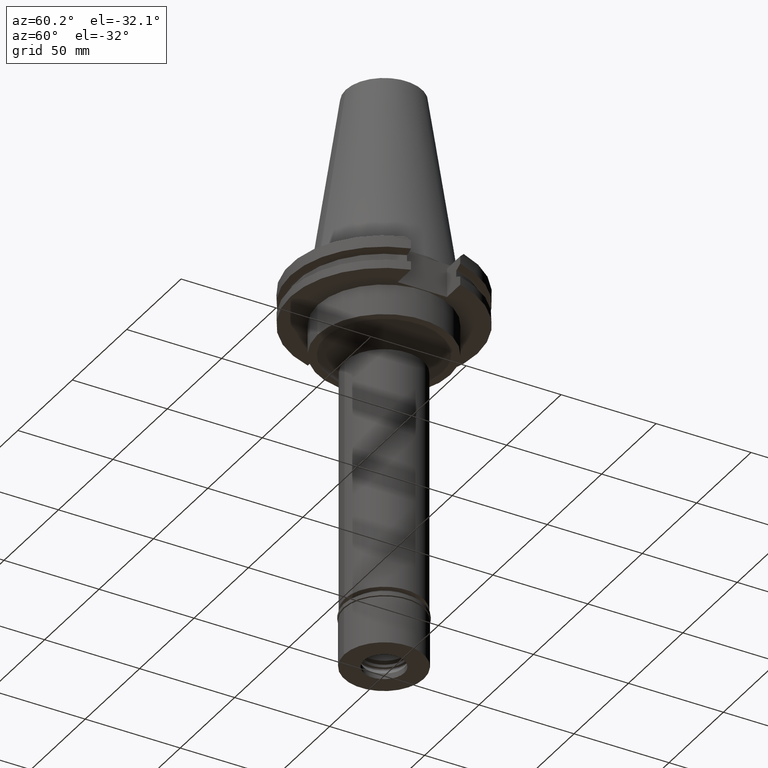
[diagram: clean part render]
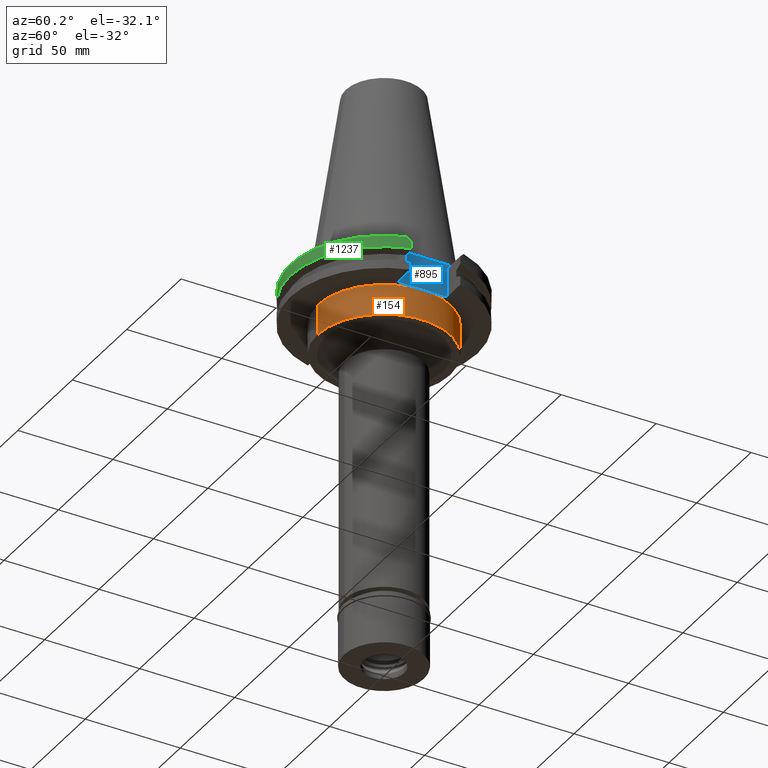
[diagram: same view with three faces highlighted in distinct colors, each labeled with its STEP entity id]
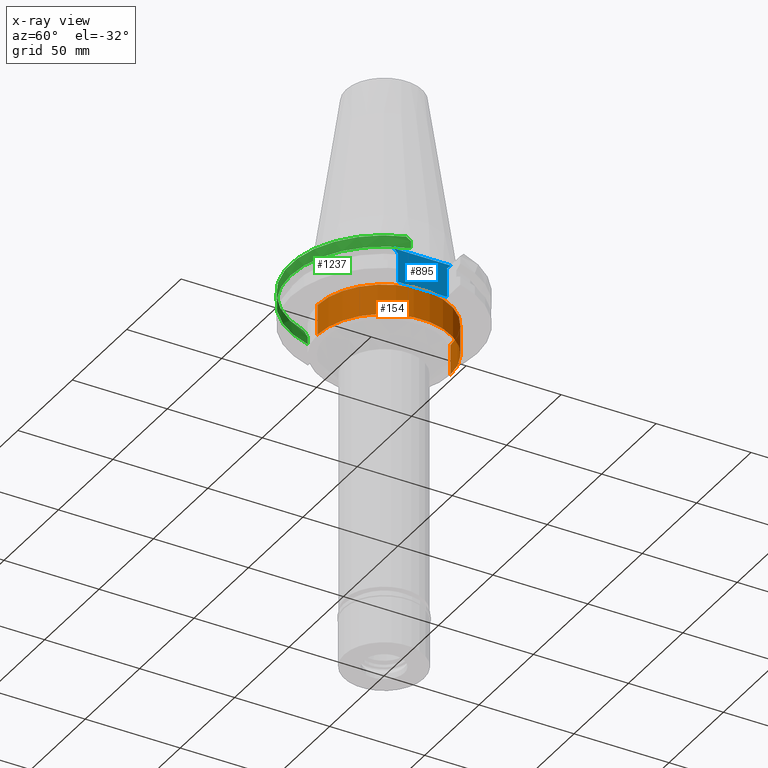
[diagram: x-ray of the same camera — body ghosted, the three highlighted faces saturated]
A machine part, auxiliary view with three faces highlighted in distinct colors.
The next image is the same camera in x-ray (body ghosted, the three faces saturated) — at least one of them is partly hidden behind the body in this view.
Their STEP definitions:

[orange] entity #154 — the highlighted cylindrical surface (partial cylindrical patch) has radius 34.925 mm, axis along (0, 0, -1).
#79 = DIRECTION ( 'NONE',  ( 0.0000000000000000000, -1.000000000000000000, 0.0000000000000000000 ) ) ;
#154 = ADVANCED_FACE ( 'NONE', ( #2116 ), #2400, .T. ) ;
#155 = CIRCLE ( 'NONE', #1707, 34.92499999999999716 ) ;
#169 = VERTEX_POINT ( 'NONE', #1880 ) ;
#348 = ORIENTED_EDGE ( 'NONE', *, *, #3296, .T. ) ;
#505 = CARTESIAN_POINT ( 'NONE',  ( 0.0000000000000000000, 2.648788561875999721E-14, -35.00000000000000000 ) ) ;
#511 = CARTESIAN_POINT ( 'NONE',  ( 0.0000000000000000000, -34.92499999999999716, -19.05000000000000071 ) ) ;
#675 = CARTESIAN_POINT ( 'NONE',  ( 0.0000000000000000000, 2.648788561875999721E-14, -19.05000000000000071 ) ) ;
#796 = DIRECTION ( 'NONE',  ( 0.0000000000000000000, 0.0000000000000000000, -1.000000000000000000 ) ) ;
#921 = EDGE_CURVE ( 'NONE', #1113, #169, #1217, .T. ) ;
#1059 = DIRECTION ( 'NONE',  ( 0.0000000000000000000, 0.0000000000000000000, 1.000000000000000000 ) ) ;
#1069 = VECTOR ( 'NONE', #2089, 1000.000000000000000 ) ;
#1113 = VERTEX_POINT ( 'NONE', #1749 ) ;
#1190 = DIRECTION ( 'NONE',  ( 0.0000000000000000000, 1.000000000000000000, 0.0000000000000000000 ) ) ;
#1217 = LINE ( 'NONE', #1702, #1476 ) ;
#1304 = CARTESIAN_POINT ( 'NONE',  ( 0.0000000000000000000, -34.92499999999999716, -19.05000000000000071 ) ) ;
#1309 = LINE ( 'NONE', #511, #1069 ) ;
#1476 = VECTOR ( 'NONE', #2249, 1000.000000000000000 ) ;
#1521 = ORIENTED_EDGE ( 'NONE', *, *, #921, .F. ) ;
#1523 = DIRECTION ( 'NONE',  ( 0.0000000000000000000, -1.000000000000000000, 0.0000000000000000000 ) ) ;
#1702 = CARTESIAN_POINT ( 'NONE',  ( 0.0000000000000000000, 34.92499999999999716, -19.05000000000000071 ) ) ;
#1707 = AXIS2_PLACEMENT_3D ( 'NONE', #505, #1059, #1523 ) ;
#1749 = CARTESIAN_POINT ( 'NONE',  ( 0.0000000000000000000, 34.92499999999999716, -19.05000000000000071 ) ) ;
#1823 = CARTESIAN_POINT ( 'NONE',  ( 0.0000000000000000000, 2.648788561875999721E-14, 116.2900000000000063 ) ) ;
#1880 = CARTESIAN_POINT ( 'NONE',  ( 0.0000000000000000000, 34.92499999999999716, -35.00000000000000000 ) ) ;
#1934 = CIRCLE ( 'NONE', #2692, 34.92499999999999716 ) ;
#1963 = EDGE_CURVE ( 'NONE', #1113, #2241, #1934, .T. ) ;
#2089 = DIRECTION ( 'NONE',  ( 0.0000000000000000000, 0.0000000000000000000, -1.000000000000000000 ) ) ;
#2116 = FACE_OUTER_BOUND ( 'NONE', #2156, .T. ) ;
#2156 = EDGE_LOOP ( 'NONE', ( #2407, #2964, #348, #1521 ) ) ;
#2241 = VERTEX_POINT ( 'NONE', #1304 ) ;
#2249 = DIRECTION ( 'NONE',  ( 0.0000000000000000000, 0.0000000000000000000, -1.000000000000000000 ) ) ;
#2400 = CYLINDRICAL_SURFACE ( 'NONE', #3204, 34.92499999999999716 ) ;
#2407 = ORIENTED_EDGE ( 'NONE', *, *, #1963, .T. ) ;
#2645 = EDGE_CURVE ( 'NONE', #2241, #3262, #1309, .T. ) ;
#2692 = AXIS2_PLACEMENT_3D ( 'NONE', #675, #3260, #1190 ) ;
#2812 = CARTESIAN_POINT ( 'NONE',  ( 0.0000000000000000000, -34.92499999999999716, -35.00000000000000000 ) ) ;
#2964 = ORIENTED_EDGE ( 'NONE', *, *, #2645, .T. ) ;
#3204 = AXIS2_PLACEMENT_3D ( 'NONE', #1823, #796, #79 ) ;
#3260 = DIRECTION ( 'NONE',  ( 0.0000000000000000000, 0.0000000000000000000, -1.000000000000000000 ) ) ;
#3262 = VERTEX_POINT ( 'NONE', #2812 ) ;
#3296 = EDGE_CURVE ( 'NONE', #3262, #169, #155, .T. ) ;

[blue] entity #895 — the highlighted planar face has unit normal (1, 0, 0).
#15 = ORIENTED_EDGE ( 'NONE', *, *, #3096, .F. ) ;
#60 = ORIENTED_EDGE ( 'NONE', *, *, #2886, .F. ) ;
#64 = VERTEX_POINT ( 'NONE', #2329 ) ;
#184 = CARTESIAN_POINT ( 'NONE',  ( 35.27000000000000313, 15.15499999999999936, -1.500000000000000000 ) ) ;
#341 = LINE ( 'NONE', #1916, #1548 ) ;
#391 = VERTEX_POINT ( 'NONE', #1406 ) ;
#394 = LINE ( 'NONE', #2491, #1238 ) ;
#546 = CARTESIAN_POINT ( 'NONE',  ( 35.27000000000000313, 12.95500000000000007, -3.700000000000000178 ) ) ;
#597 = VECTOR ( 'NONE', #1426, 1000.000000000000000 ) ;
#694 = CARTESIAN_POINT ( 'NONE',  ( 35.27000000000000313, -12.95500000000000007, -19.05000000000000071 ) ) ;
#733 = EDGE_CURVE ( 'NONE', #2651, #3142, #1400, .T. ) ;
#895 = ADVANCED_FACE ( 'NONE', ( #971 ), #1415, .T. ) ;
#916 = DIRECTION ( 'NONE',  ( 0.0000000000000000000, -0.7071067811865474617, 0.7071067811865474617 ) ) ;
#963 = DIRECTION ( 'NONE',  ( 0.0000000000000000000, -0.7071067811865474617, -0.7071067811865474617 ) ) ;
#971 = FACE_OUTER_BOUND ( 'NONE', #2171, .T. ) ;
#1126 = ORIENTED_EDGE ( 'NONE', *, *, #1137, .F. ) ;
#1137 = EDGE_CURVE ( 'NONE', #64, #391, #2333, .T. ) ;
#1159 = VERTEX_POINT ( 'NONE', #2124 ) ;
#1162 = LINE ( 'NONE', #184, #2036 ) ;
#1225 = CARTESIAN_POINT ( 'NONE',  ( 35.27000000000000313, -15.15499999999999936, -1.500000000000000000 ) ) ;
#1238 = VECTOR ( 'NONE', #916, 1000.000000000000114 ) ;
#1400 = LINE ( 'NONE', #2442, #2614 ) ;
#1406 = CARTESIAN_POINT ( 'NONE',  ( 35.27000000000000313, 12.95500000000000007, -19.05000000000000071 ) ) ;
#1415 = PLANE ( 'NONE',  #2564 ) ;
#1426 = DIRECTION ( 'NONE',  ( 0.0000000000000000000, 0.0000000000000000000, 1.000000000000000000 ) ) ;
#1487 = DIRECTION ( 'NONE',  ( 0.0000000000000000000, 1.000000000000000000, 0.0000000000000000000 ) ) ;
#1548 = VECTOR ( 'NONE', #2942, 1000.000000000000000 ) ;
#1916 = CARTESIAN_POINT ( 'NONE',  ( 35.27000000000000313, 12.95500000000000007, -19.05000000000000071 ) ) ;
#1943 = EDGE_CURVE ( 'NONE', #3116, #1159, #1948, .T. ) ;
#1948 = LINE ( 'NONE', #2962, #597 ) ;
#2036 = VECTOR ( 'NONE', #963, 1000.000000000000114 ) ;
#2124 = CARTESIAN_POINT ( 'NONE',  ( 35.27000000000000313, -12.95500000000000007, -3.700000000000000178 ) ) ;
#2171 = EDGE_LOOP ( 'NONE', ( #1126, #15, #2626, #2660, #3037, #60 ) ) ;
#2186 = DIRECTION ( 'NONE',  ( 0.0000000000000000000, -1.000000000000000000, 0.0000000000000000000 ) ) ;
#2329 = CARTESIAN_POINT ( 'NONE',  ( 35.27000000000000313, 12.95500000000000007, -3.700000000000000178 ) ) ;
#2333 = LINE ( 'NONE', #546, #3199 ) ;
#2406 = EDGE_CURVE ( 'NONE', #1159, #3142, #394, .T. ) ;
#2442 = CARTESIAN_POINT ( 'NONE',  ( 35.27000000000000313, 15.15499999999999936, -1.500000000000000000 ) ) ;
#2491 = CARTESIAN_POINT ( 'NONE',  ( 35.27000000000000313, -12.95500000000000007, -3.700000000000000178 ) ) ;
#2564 = AXIS2_PLACEMENT_3D ( 'NONE', #2972, #2989, #1487 ) ;
#2614 = VECTOR ( 'NONE', #2186, 1000.000000000000000 ) ;
#2626 = ORIENTED_EDGE ( 'NONE', *, *, #733, .T. ) ;
#2651 = VERTEX_POINT ( 'NONE', #3085 ) ;
#2660 = ORIENTED_EDGE ( 'NONE', *, *, #2406, .F. ) ;
#2886 = EDGE_CURVE ( 'NONE', #391, #3116, #341, .T. ) ;
#2942 = DIRECTION ( 'NONE',  ( 0.0000000000000000000, -1.000000000000000000, 0.0000000000000000000 ) ) ;
#2962 = CARTESIAN_POINT ( 'NONE',  ( 35.27000000000000313, -12.95500000000000007, -19.05000000000000071 ) ) ;
#2972 = CARTESIAN_POINT ( 'NONE',  ( 35.27000000000000313, 0.0000000000000000000, 0.0000000000000000000 ) ) ;
#2989 = DIRECTION ( 'NONE',  ( 1.000000000000000000, 0.0000000000000000000, 0.0000000000000000000 ) ) ;
#3037 = ORIENTED_EDGE ( 'NONE', *, *, #1943, .F. ) ;
#3085 = CARTESIAN_POINT ( 'NONE',  ( 35.27000000000000313, 15.15499999999999936, -1.500000000000000000 ) ) ;
#3096 = EDGE_CURVE ( 'NONE', #2651, #64, #1162, .T. ) ;
#3116 = VERTEX_POINT ( 'NONE', #694 ) ;
#3142 = VERTEX_POINT ( 'NONE', #1225 ) ;
#3169 = DIRECTION ( 'NONE',  ( 0.0000000000000000000, 0.0000000000000000000, -1.000000000000000000 ) ) ;
#3199 = VECTOR ( 'NONE', #3169, 1000.000000000000000 ) ;

[green] entity #1237 — the highlighted cylindrical surface (partial cylindrical patch) has radius 49.2125 mm, axis along (0, 0, -1).
#75 = ORIENTED_EDGE ( 'NONE', *, *, #834, .T. ) ;
#93 = ORIENTED_EDGE ( 'NONE', *, *, #1382, .F. ) ;
#117 = LINE ( 'NONE', #2504, #276 ) ;
#140 = CARTESIAN_POINT ( 'NONE',  ( 47.05739607796999735, -14.42433483211999956, -2.230665167879999800 ) ) ;
#159 = DIRECTION ( 'NONE',  ( 0.0000000000000000000, -1.000000000000000000, 0.0000000000000000000 ) ) ;
#181 = CARTESIAN_POINT ( 'NONE',  ( 47.47671146204000081, -12.95500000000000007, -7.601333230924999462 ) ) ;
#207 = CARTESIAN_POINT ( 'NONE',  ( -47.47671146204000081, -12.95500000000000007, -7.601333230924999462 ) ) ;
#276 = VECTOR ( 'NONE', #2967, 1000.000000000000000 ) ;
#379 = CYLINDRICAL_SURFACE ( 'NONE', #1212, 49.21249999999999858 ) ;
#433 = CARTESIAN_POINT ( 'NONE',  ( 0.0000000000000000000, 2.648788561875999721E-14, -1.500000000000000000 ) ) ;
#480 = DIRECTION ( 'NONE',  ( 0.0000000000000000000, 0.0000000000000000000, 1.000000000000000000 ) ) ;
#594 = VERTEX_POINT ( 'NONE', #3092 ) ;
#635 = CARTESIAN_POINT ( 'NONE',  ( -47.47671146204000081, -12.95500000000000007, -7.601333230924999462 ) ) ;
#714 = EDGE_CURVE ( 'NONE', #946, #594, #2427, .T. ) ;
#787 = CIRCLE ( 'NONE', #1051, 49.21249999999999858 ) ;
#834 = EDGE_CURVE ( 'NONE', #2470, #2795, #787, .T. ) ;
#840 = CIRCLE ( 'NONE', #889, 49.21250000000001279 ) ;
#889 = AXIS2_PLACEMENT_3D ( 'NONE', #3300, #480, #1566 ) ;
#931 = ORIENTED_EDGE ( 'NONE', *, *, #959, .F. ) ;
#946 = VERTEX_POINT ( 'NONE', #207 ) ;
#959 = EDGE_CURVE ( 'NONE', #2470, #2658, #2030, .T. ) ;
#999 = CARTESIAN_POINT ( 'NONE',  ( -46.82089417396999664, -15.15499999999999936, -1.500000000000000000 ) ) ;
#1051 = AXIS2_PLACEMENT_3D ( 'NONE', #433, #1975, #159 ) ;
#1068 = FACE_OUTER_BOUND ( 'NONE', #3216, .T. ) ;
#1082 = EDGE_CURVE ( 'NONE', #946, #1890, #840, .T. ) ;
#1093 = ORIENTED_EDGE ( 'NONE', *, *, #1082, .T. ) ;
#1132 = DIRECTION ( 'NONE',  ( 0.0000000000000000000, -1.000000000000000000, 0.0000000000000000000 ) ) ;
#1212 = AXIS2_PLACEMENT_3D ( 'NONE', #3154, #2423, #1132 ) ;
#1237 = ADVANCED_FACE ( 'NONE', ( #1068 ), #379, .T. ) ;
#1354 = ORIENTED_EDGE ( 'NONE', *, *, #714, .F. ) ;
#1382 = EDGE_CURVE ( 'NONE', #594, #2795, #3184, .T. ) ;
#1453 = CARTESIAN_POINT ( 'NONE',  ( 46.82089417396999664, -15.15499999999999936, -1.500000000000000000 ) ) ;
#1566 = DIRECTION ( 'NONE',  ( -0.9647287063660957562, -0.2632461264922989486, 0.0000000000000000000 ) ) ;
#1683 = CARTESIAN_POINT ( 'NONE',  ( 47.27588310256999904, -13.69098379592999848, -2.964016204073000260 ) ) ;
#1890 = VERTEX_POINT ( 'NONE', #181 ) ;
#1940 = CARTESIAN_POINT ( 'NONE',  ( -47.27588310256999904, -13.69098379592999848, -2.964016204073000260 ) ) ;
#1975 = DIRECTION ( 'NONE',  ( 0.0000000000000000000, 0.0000000000000000000, -1.000000000000000000 ) ) ;
#2030 = B_SPLINE_CURVE_WITH_KNOTS ( 'NONE', 3,
 ( #2461, #140, #1683, #2723 ),
 .UNSPECIFIED., .F., .F.,
 ( 4, 4 ),
 ( 0.0000000000000000000, 1.000000000000000000 ),
 .UNSPECIFIED. ) ;
#2147 = DIRECTION ( 'NONE',  ( 2.640858665149000022E-13, 3.369371400362999696E-14, 1.000000000000000000 ) ) ;
#2199 = CARTESIAN_POINT ( 'NONE',  ( -47.47671146204000081, -12.95500000000000007, -3.699999999999000089 ) ) ;
#2296 = EDGE_CURVE ( 'NONE', #2658, #1890, #117, .T. ) ;
#2423 = DIRECTION ( 'NONE',  ( 0.0000000000000000000, 0.0000000000000000000, -1.000000000000000000 ) ) ;
#2427 = LINE ( 'NONE', #635, #3251 ) ;
#2461 = CARTESIAN_POINT ( 'NONE',  ( 46.82089417396999664, -15.15499999999999936, -1.500000000000000000 ) ) ;
#2470 = VERTEX_POINT ( 'NONE', #1453 ) ;
#2504 = CARTESIAN_POINT ( 'NONE',  ( 47.47671146204000081, -12.95500000000000007, -3.700000000000000178 ) ) ;
#2658 = VERTEX_POINT ( 'NONE', #2799 ) ;
#2723 = CARTESIAN_POINT ( 'NONE',  ( 47.47671146204000081, -12.95500000000000007, -3.700000000000000178 ) ) ;
#2795 = VERTEX_POINT ( 'NONE', #999 ) ;
#2799 = CARTESIAN_POINT ( 'NONE',  ( 47.47671146204000081, -12.95500000000000007, -3.700000000000000178 ) ) ;
#2946 = CARTESIAN_POINT ( 'NONE',  ( -46.82089417396999664, -15.15499999999999936, -1.500000000000000000 ) ) ;
#2967 = DIRECTION ( 'NONE',  ( 2.622645846769000281E-13, -3.323839354412000068E-14, -1.000000000000000000 ) ) ;
#2968 = CARTESIAN_POINT ( 'NONE',  ( -47.05739607796999735, -14.42433483211999956, -2.230665167879999800 ) ) ;
#3092 = CARTESIAN_POINT ( 'NONE',  ( -47.47671146204000081, -12.95500000000000007, -3.699999999999000089 ) ) ;
#3154 = CARTESIAN_POINT ( 'NONE',  ( 0.0000000000000000000, 2.648788561875999721E-14, 116.2900000000000063 ) ) ;
#3184 = B_SPLINE_CURVE_WITH_KNOTS ( 'NONE', 3,
 ( #2199, #1940, #2968, #2946 ),
 .UNSPECIFIED., .F., .F.,
 ( 4, 4 ),
 ( 0.0000000000000000000, 1.000000000000000000 ),
 .UNSPECIFIED. ) ;
#3216 = EDGE_LOOP ( 'NONE', ( #1354, #1093, #3255, #931, #75, #93 ) ) ;
#3251 = VECTOR ( 'NONE', #2147, 1000.000000000000000 ) ;
#3255 = ORIENTED_EDGE ( 'NONE', *, *, #2296, .F. ) ;
#3300 = CARTESIAN_POINT ( 'NONE',  ( 0.0000000000000000000, 1.121722380078999823E-14, -7.601333230925999551 ) ) ;